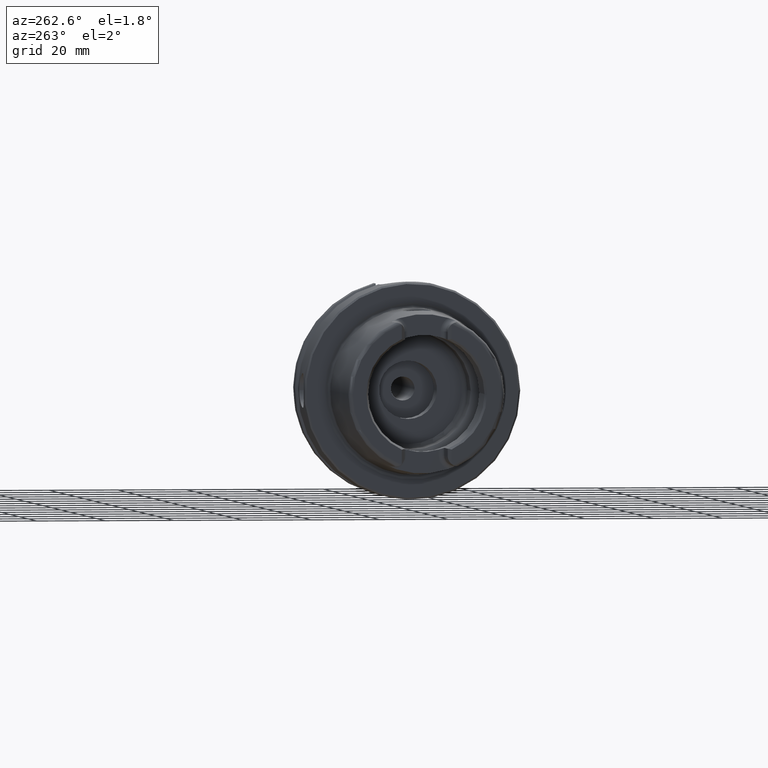
[diagram: clean part render]
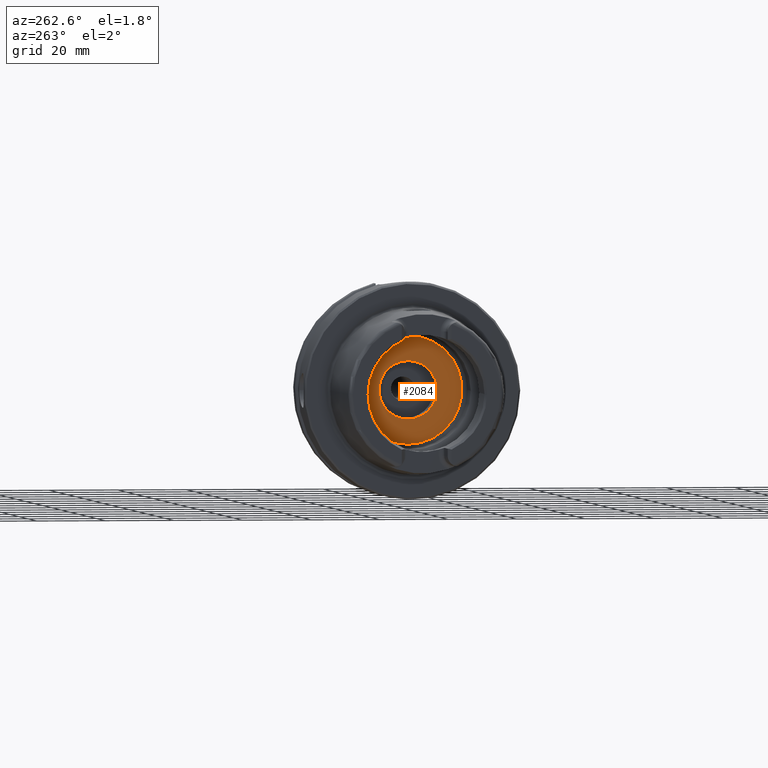
[diagram: same view with one face highlighted and labeled with its STEP entity id]
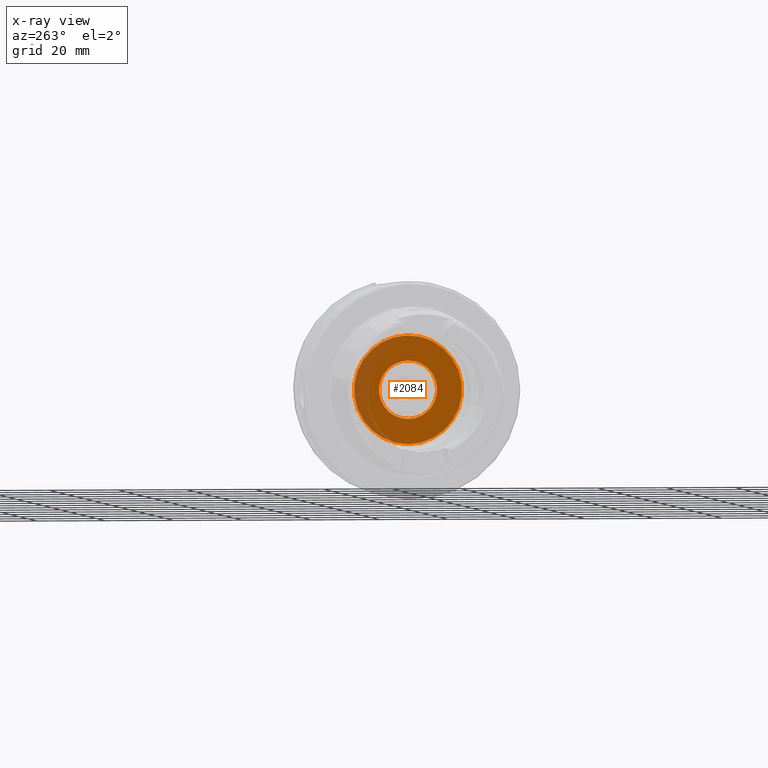
[diagram: x-ray of the same camera — body ghosted, the highlighted face saturated]
A machine part, auxiliary view. The second image highlights one B-rep face of the part: STEP entity #2084.
The next image is the same camera in x-ray: the body ghosted, the highlighted face saturated — about 21% of this face is hidden behind the body in this view.
In plain terms, the highlighted planar face has unit normal (1, 0, 0).
Its self-contained STEP definition (entity closure, byte-faithful):
#100=FACE_BOUND('',#452,.T.);
#142=PLANE('',#2345);
#321=FACE_OUTER_BOUND('',#451,.T.);
#451=EDGE_LOOP('',(#1909));
#452=EDGE_LOOP('',(#1910));
#784=CIRCLE('',#2334,8.458734);
#791=CIRCLE('',#2346,15.75);
#994=VERTEX_POINT('',#4392);
#1000=VERTEX_POINT('',#4412);
#1298=EDGE_CURVE('',#994,#994,#784,.T.);
#1307=EDGE_CURVE('',#1000,#1000,#791,.T.);
#1909=ORIENTED_EDGE('',*,*,#1307,.T.);
#1910=ORIENTED_EDGE('',*,*,#1298,.T.);
#2084=ADVANCED_FACE('',(#321,#100),#142,.F.);
#2334=AXIS2_PLACEMENT_3D('',#4393,#2905,#2906);
#2345=AXIS2_PLACEMENT_3D('',#4411,#2929,#2930);
#2346=AXIS2_PLACEMENT_3D('',#4413,#2931,#2932);
#2905=DIRECTION('center_axis',(1.,0.,0.));
#2906=DIRECTION('ref_axis',(0.,0.,1.));
#2929=DIRECTION('center_axis',(1.,0.,0.));
#2930=DIRECTION('ref_axis',(0.,0.,-1.));
#2931=DIRECTION('center_axis',(-1.,0.,0.));
#2932=DIRECTION('ref_axis',(0.,0.,1.));
#4392=CARTESIAN_POINT('',(10.,-1.03589615179389E-15,-8.458734));
#4393=CARTESIAN_POINT('Origin',(10.,0.,0.));
#4411=CARTESIAN_POINT('Origin',(10.,15.75,0.));
#4412=CARTESIAN_POINT('',(10.,-1.92881870865708E-15,-15.75));
#4413=CARTESIAN_POINT('Origin',(10.,0.,0.));